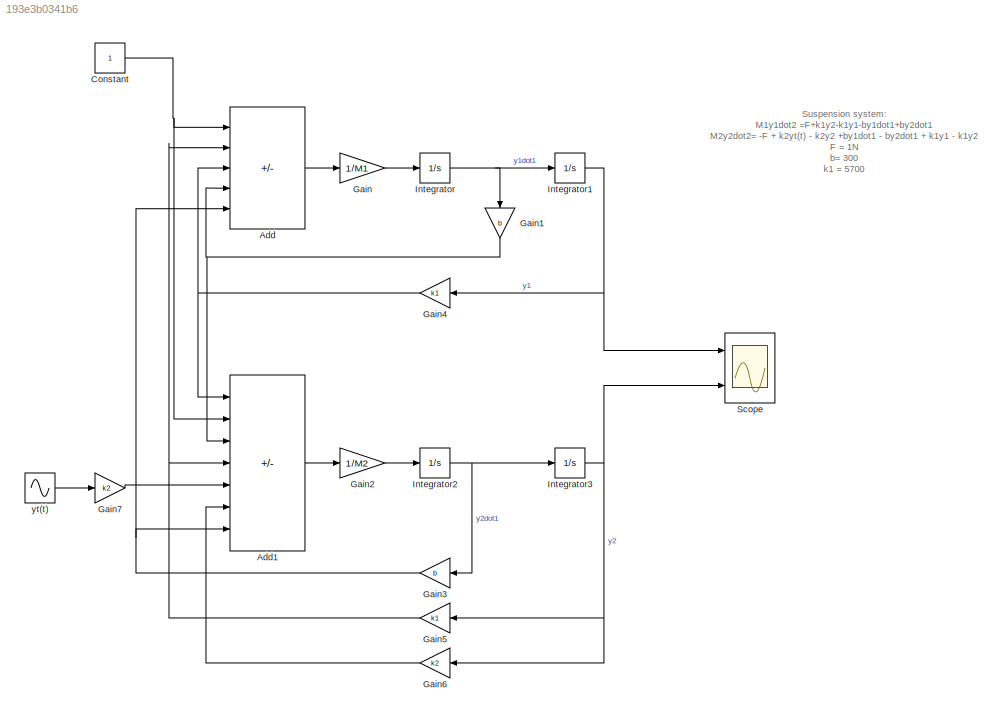
MODEL slx_193e3b0341b6
KIND model
CONFIG AbsTol = auto
CONFIG EnableMultiTasking = off
CONFIG FixedStep = auto
CONFIG MaxStep = auto
CONFIG MinStep = auto
CONFIG RelTol = 1e-3
CONFIG SampleTimeConstraint = Unconstrained
CONFIG SolverName = VariableStepAuto
CONFIG StartTime = 1
CONFIG StopTime = 100
BLOCK [Sum] Add
  IconShape = rectangular
  Inputs = ++--+
  Ports = [5, 1]
BLOCK [Sum] Add1
  IconShape = rectangular
  Inputs = +-+-+--
  Ports = [7, 1]
BLOCK [Constant] Constant
BLOCK [Gain] Gain
  Gain = 1/M1
BLOCK [Gain] Gain1
  Gain = b
  NameLocation = left
BLOCK [Gain] Gain2
  Gain = 1/M2
BLOCK [Gain] Gain3
  Gain = b
BLOCK [Gain] Gain4
  Gain = k1
BLOCK [Gain] Gain5
  Gain = k1
BLOCK [Gain] Gain6
  Gain = k2
  NameLocation = top
BLOCK [Gain] Gain7
  Gain = k2
BLOCK [Integrator] Integrator
  Ports = [1, 1]
BLOCK [Integrator] Integrator1
  Ports = [1, 1]
BLOCK [Integrator] Integrator2
  Ports = [1, 1]
BLOCK [Integrator] Integrator3
  Ports = [1, 1]
BLOCK [Scope] Scope
  Floating = off
  NumInputPorts = 3
  Ports = [3]
  ScopeSpecificationString = Simulink.scopes.TimeScopeBlockCfg('CurrentConfiguration', extmgr.ConfigurationSet(extmgr.Configuration('Core','General UI',true),extmgr.Configuration('Core','Source UI',true),extmgr.Configuration('Sources','WiredSimulink',true),extmgr.Configuration('Visuals','Time Domain',true,'SerializedDisplays',{struct('MinYLimReal','-1.11748','MaxYLimReal','0.96874','YLabelReal','','MinYLimMag','0.00000','MaxY...<+2138ch>
BLOCK [Sin] yt(t)
  Amplitude = 2
  Frequency = 10
  Ports = [0, 1]
  SampleTime = 0
ANNOTATION (root): Suspension system: M1y1dot2 =F+k1y2-k1y1-by1dot1+by2dot1 M2y2dot2= -F + k2yt(t) - k2y2 +by1dot1 - by2dot1 + k1y1 - k1y2 F = 1N b= 300 k1 = 5700 k2 = 135000 M1=500 M2=50
LINE Add1:1 -> Gain2:1
LINE Add:1 -> Gain:1
NET Constant:1 -> Add1:2, Add:1
NET Gain1:1 -> Add1:3, Add:4
LINE Gain2:1 -> Integrator2:1
NET Gain3:1 -> Add1:7, Add:5
NET Gain4:1 -> Add1:1, Add:3
NET Gain5:1 -> Add1:4, Add:2
LINE Gain6:1 -> Add1:6
LINE Gain7:1 -> Add1:5
LINE Gain:1 -> Integrator:1
NET Integrator1:1 -> Gain4:1, Scope:1
NET Integrator2:1 -> Gain3:1, Integrator3:1
NET Integrator3:1 -> Gain5:1, Gain6:1, Scope:3
NET Integrator:1 -> Gain1:1, Integrator1:1
LINE yt(t):1 -> Gain7:1
note: NET lines group one-source signal fan-out (src -> all destinations, sorted); 1:1 wires keep LINE
